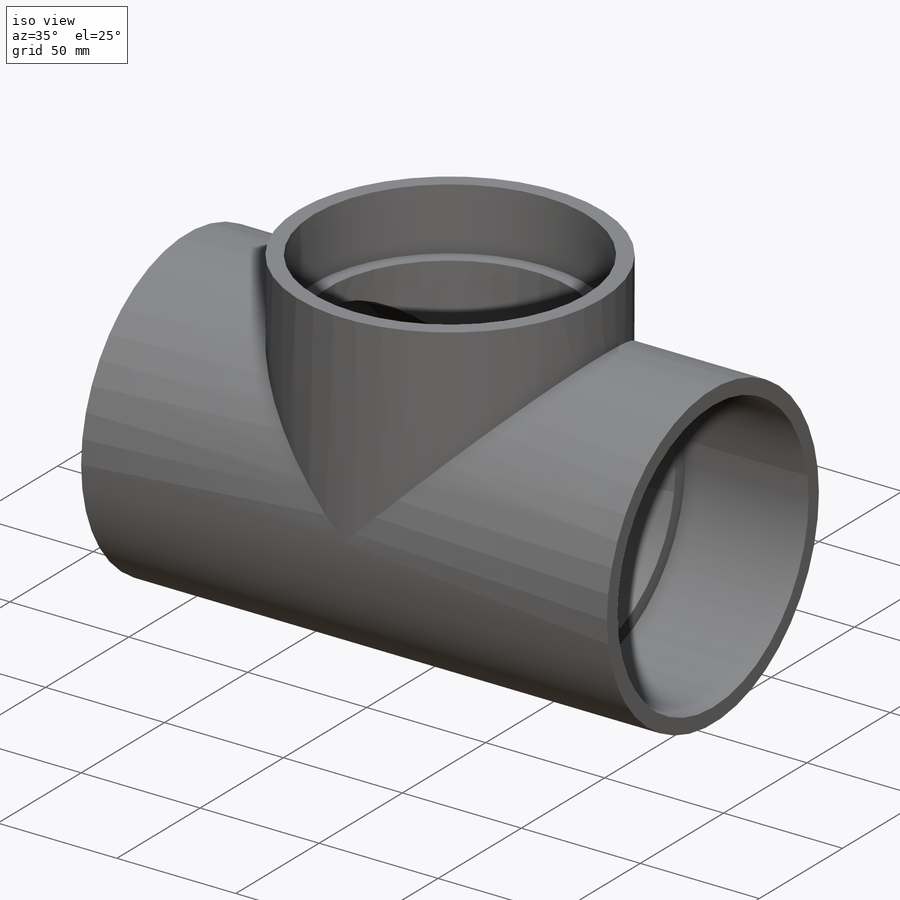
[diagram: iso view]
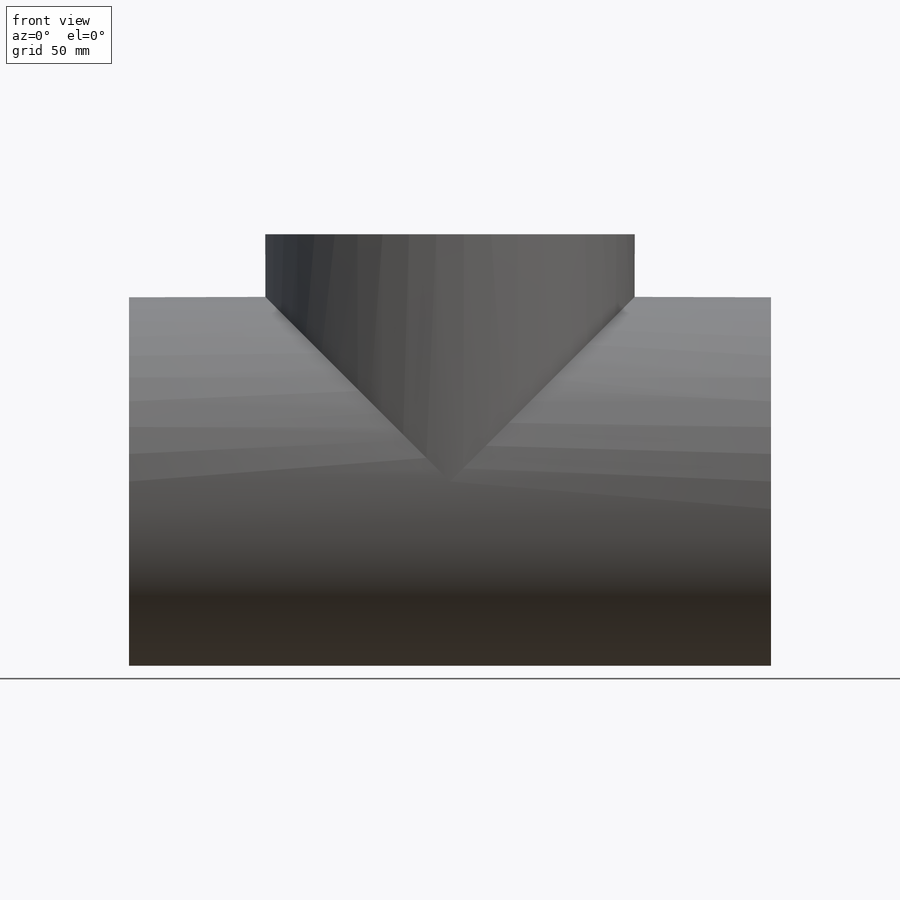
[diagram: front view]
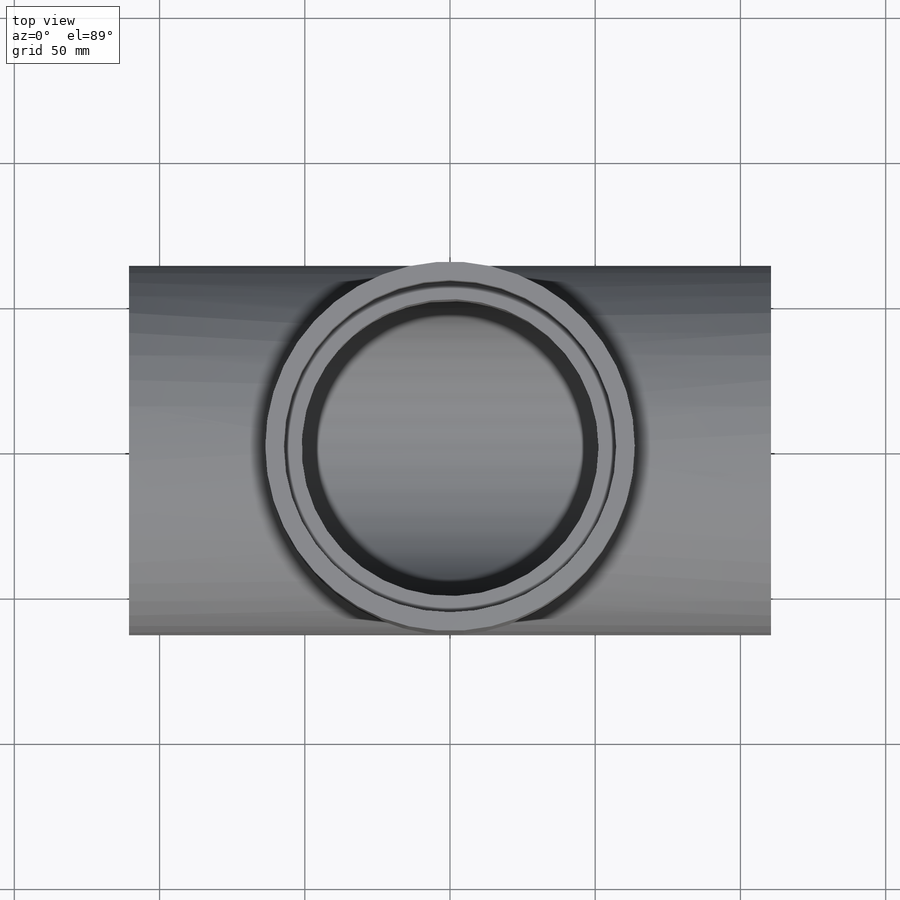
[diagram: top view]
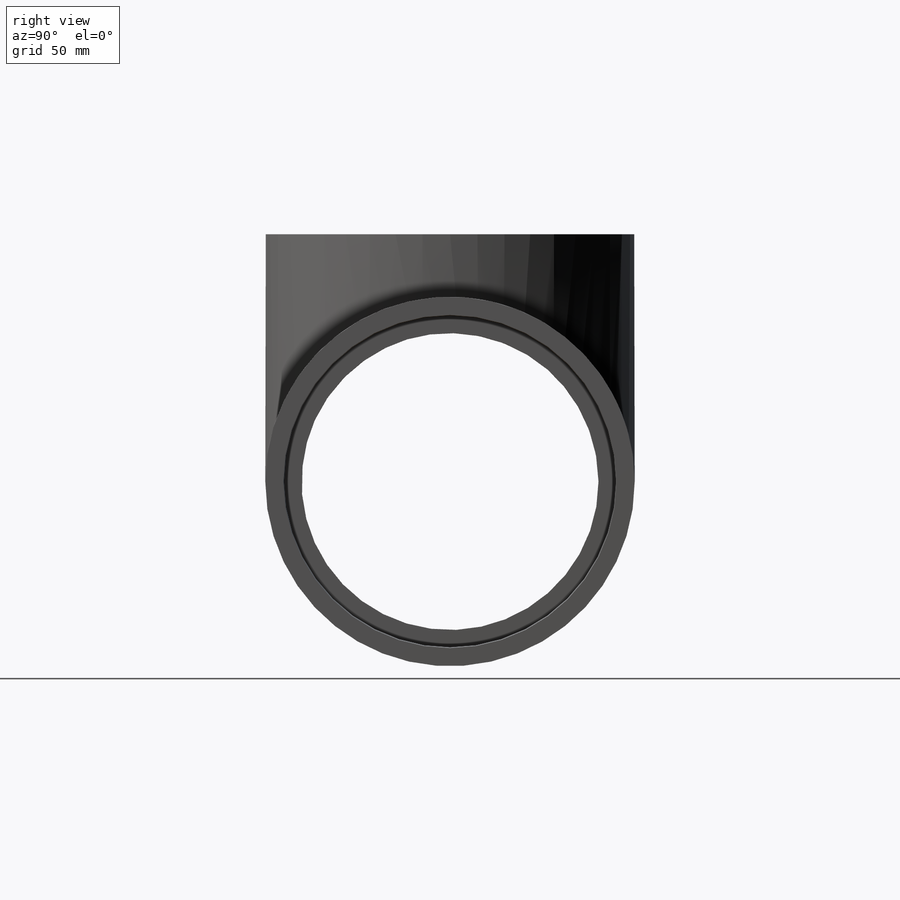
[diagram: right view]
SOLIDWORKS PART (.sldprt)
format: sldprt  version: not decoded by parser v0  size: 336,384 bytes
history: native  units: mm
features: sketch x9, revolve x2, extrude x2, cut_revolve x2, material x1, cut_extrude x1 (+13 scaffold rows collapsed)
feature tree (30):
  scaffold x13  (default folders/planes/origin — collapsed)
  material  "PVC Rigid"
  sketch  "Sketch0"  dims[H=110.5154mm G=58.9788mm M=127.2032mm OD A=114.7572mm OD B=114.0714mm ID=102.2604mm H3=110.5154mm]
  sketch  "Sketch1"
  revolve  "Revolve1"  Angle=360deg
  sketch  "Sketch2"  dims[D1=~13.71728mm]
  revolve  "Revolve2"  Angle=360deg
  sketch  "Sketch3"
  sketch  "Sketch4"
  extrude  "Boss-Extrude1"  [1 undecoded]
  sketch  "Sketch5"
  extrude  "Boss-Extrude2"  [1 undecoded]
  sketch  "Sketch6"  dims[D1=26.2509mm]
  cut_revolve  "Cut-Revolve1"  Angle=360deg
  sketch  "Sketch7"
  cut_revolve  "Cut-Revolve2"  Angle=360deg
  sketch  "Sketch8"  dims[D1=~50.100336mm]
  cut_extrude  "Cut-Extrude1"  Depth=25.4mm
decode coverage: 9 of 16 modeling features carry decoded parameters
note: ~ marks probable driven/reference dimensions
note: 2 parameter values undecoded
note: suppression state not decoded; provenance and decode notes live in map.json
